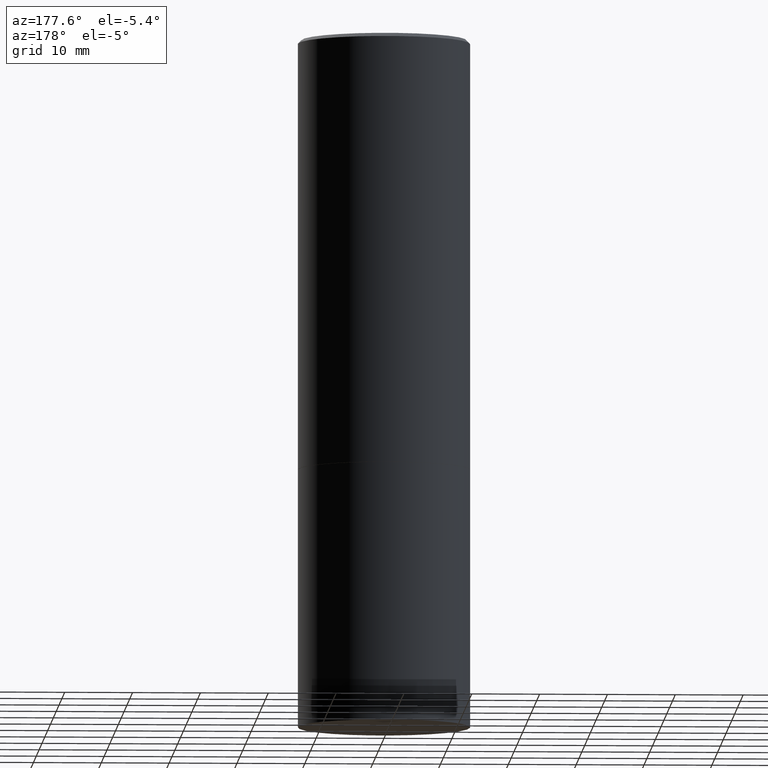
[diagram: clean part render]
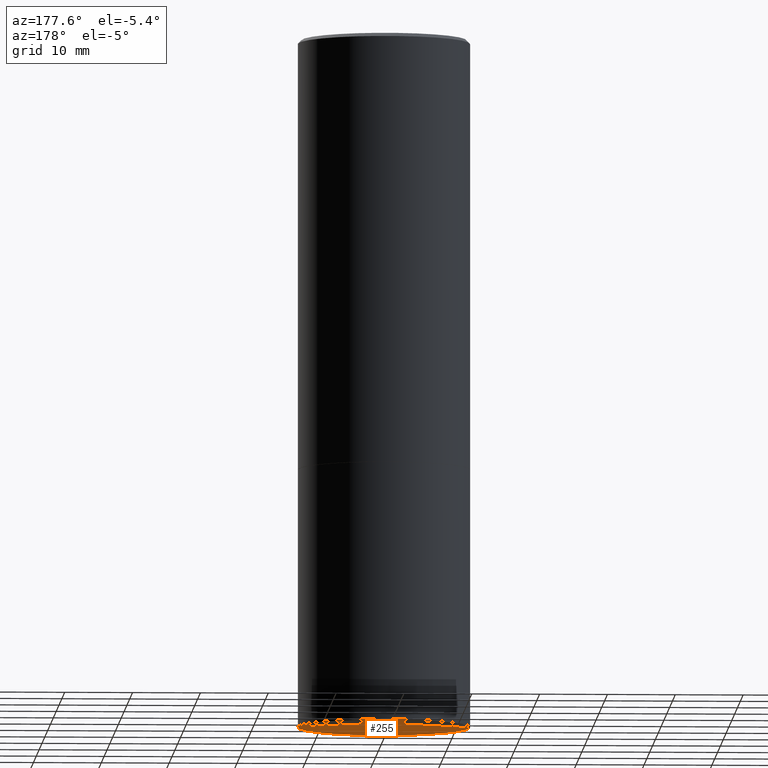
[diagram: same view with one face highlighted and labeled with its STEP entity id]
A machine part, auxiliary view. The second image highlights one B-rep face of the part: STEP entity #255.
In plain terms, the highlighted conical surface has half-angle 87 deg.
Its self-contained STEP definition (entity closure, byte-faithful):
#3 = CARTESIAN_POINT ( 'NONE',  ( 2.735601209579181363E-18, -1.387443496368411928E-14, -3.973796110358482903 ) ) ;
#24 = CARTESIAN_POINT ( 'NONE',  ( 0.4999999999999993894, -1.739617435425834338E-14, -4.000000000000000000 ) ) ;
#29 = ORIENTED_EDGE ( 'NONE', *, *, #86, .T. ) ;
#38 = VERTEX_POINT ( 'NONE', #114 ) ;
#44 = CONICAL_SURFACE ( 'NONE', #263, 751.2258538476644389, 1.518436449235073482 ) ;
#47 = CARTESIAN_POINT ( 'NONE',  ( -0.4999999999999993894, -1.047444401652945213E-14, -4.000000000000000000 ) ) ;
#71 = DIRECTION ( 'NONE',  ( 0.9986295347545742773, -7.033825938271998700E-15, -0.05233595624293709697 ) ) ;
#86 = EDGE_CURVE ( 'NONE', #38, #335, #238, .T. ) ;
#114 = CARTESIAN_POINT ( 'NONE',  ( 9.715884169906814161E-29, -1.387717056489360055E-14, -3.973796110358482903 ) ) ;
#117 = ORIENTED_EDGE ( 'NONE', *, *, #130, .F. ) ;
#128 = VECTOR ( 'NONE', #318, 39.37007874015748143 ) ;
#130 = EDGE_CURVE ( 'NONE', #250, #335, #218, .T. ) ;
#135 = CARTESIAN_POINT ( 'NONE',  ( -2.735601209384825372E-18, -1.387443496368411928E-14, -3.973796110358482903 ) ) ;
#137 = VECTOR ( 'NONE', #71, 39.37007874015748143 ) ;
#166 = DIRECTION ( 'NONE',  ( 1.000000000000000000, -6.982962677686266711E-15, 0.000000000000000000 ) ) ;
#172 = DIRECTION ( 'NONE',  ( 2.445468806185136597E-29, -3.491481338843145583E-15, -1.000000000000000000 ) ) ;
#196 = LINE ( 'NONE', #135, #128 ) ;
#207 = ORIENTED_EDGE ( 'NONE', *, *, #283, .F. ) ;
#215 = EDGE_LOOP ( 'NONE', ( #207, #29, #117 ) ) ;
#218 = CIRCLE ( 'NONE', #323, 0.5000000000000000000 ) ;
#232 = FACE_OUTER_BOUND ( 'NONE', #215, .T. ) ;
#238 = LINE ( 'NONE', #3, #137 ) ;
#250 = VERTEX_POINT ( 'NONE', #47 ) ;
#254 = CARTESIAN_POINT ( 'NONE',  ( 1.059960938861292495E-27, -1.513343301937292314E-13, -43.34387485051595945 ) ) ;
#255 = ADVANCED_FACE ( 'NONE', ( #232 ), #44, .F. ) ;
#263 = AXIS2_PLACEMENT_3D ( 'NONE', #254, #172, #374 ) ;
#283 = EDGE_CURVE ( 'NONE', #38, #250, #196, .T. ) ;
#294 = CARTESIAN_POINT ( 'NONE',  ( 9.781875224740546387E-29, -1.396592535537258233E-14, -4.000000000000000000 ) ) ;
#296 = DIRECTION ( 'NONE',  ( -2.445468806185136597E-29, 3.491481338843145583E-15, 1.000000000000000000 ) ) ;
#318 = DIRECTION ( 'NONE',  ( -0.9986295347545742773, 6.790662755453666100E-15, -0.05233595624293709697 ) ) ;
#323 = AXIS2_PLACEMENT_3D ( 'NONE', #294, #296, #166 ) ;
#335 = VERTEX_POINT ( 'NONE', #24 ) ;
#374 = DIRECTION ( 'NONE',  ( -1.000000000000000000, 6.982962677686265922E-15, 0.000000000000000000 ) ) ;